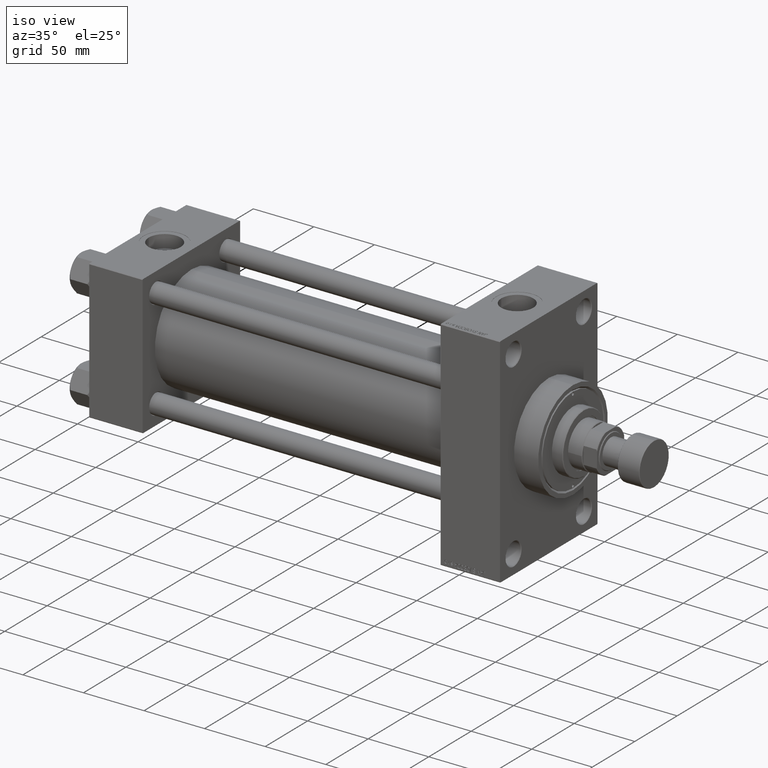
[diagram: clean part render]
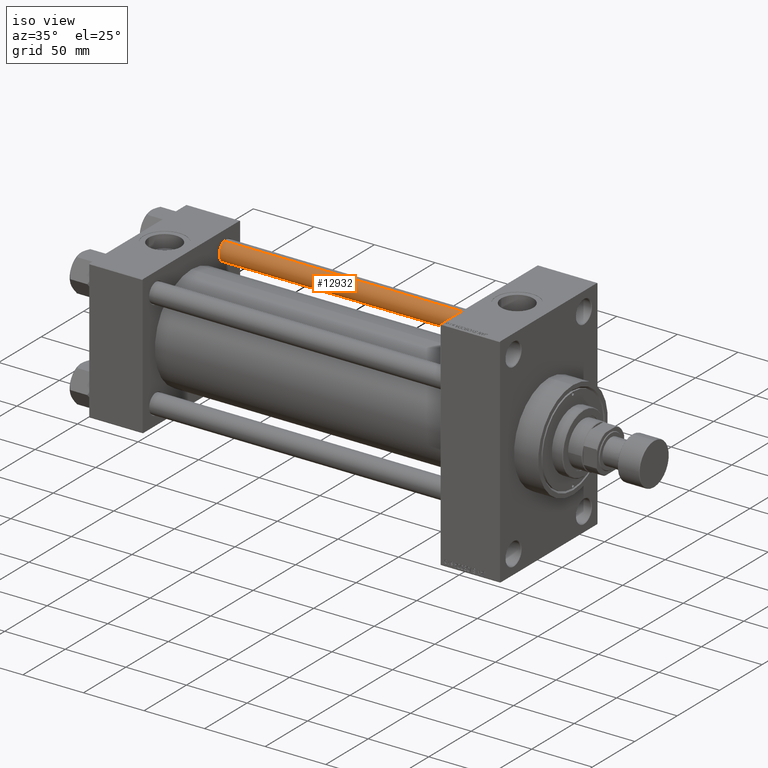
[diagram: same view with one face highlighted and labeled with its STEP entity id]
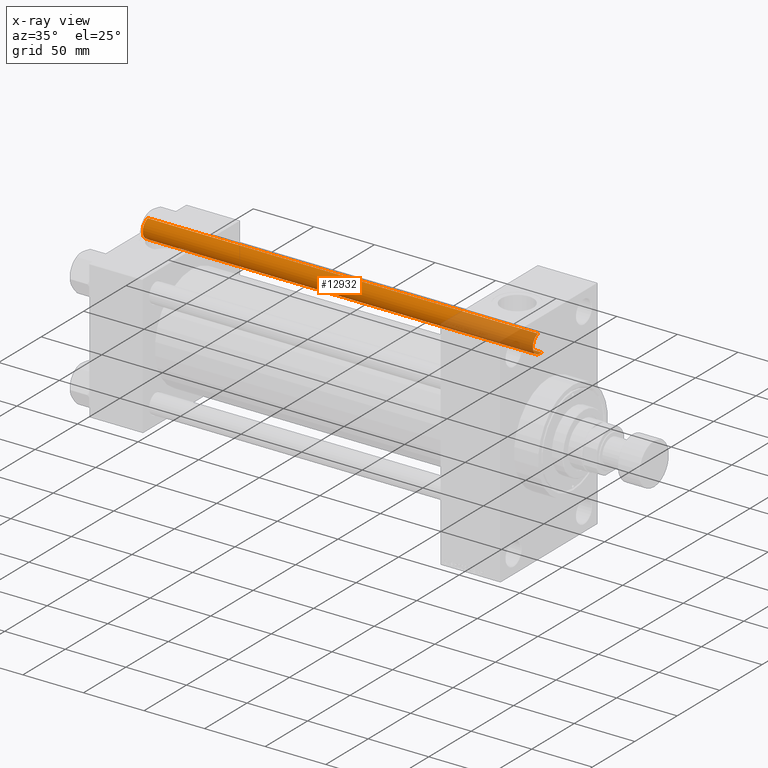
[diagram: x-ray of the same camera — body ghosted, the highlighted face saturated]
A machine part, iso view. The second image highlights one B-rep face of the part: STEP entity #12932.
The next image is the same camera in x-ray: the body ghosted, the highlighted face saturated — about 22% of this face is hidden behind the body in this view.
In plain terms, the highlighted cylindrical surface (edge-blend (fillet) strip) has radius 8 mm, axis along (-1, -0, 0).
Its self-contained STEP definition (entity closure, byte-faithful):
#425 = CARTESIAN_POINT ( 'NONE',  ( -8.000000000000000000, 0.000000000000000000, 0.5000000000000004441 ) ) ;
#885 = VECTOR ( 'NONE', #33279, 1000.000000000000000 ) ;
#1073 = DIRECTION ( 'NONE',  ( -0.000000000000000000, -0.000000000000000000, -1.000000000000000000 ) ) ;
#2963 = AXIS2_PLACEMENT_3D ( 'NONE', #6952, #37239, #33077 ) ;
#4298 = CIRCLE ( 'NONE', #39369, 8.000000000000000000 ) ;
#6952 = CARTESIAN_POINT ( 'NONE',  ( 0.000000000000000000, 0.000000000000000000, 323.0000000000000000 ) ) ;
#7405 = CARTESIAN_POINT ( 'NONE',  ( 8.000000000000000000, 9.797174393178825657E-16, 322.5000000000000000 ) ) ;
#7619 = LINE ( 'NONE', #40868, #885 ) ;
#10348 = VERTEX_POINT ( 'NONE', #44113 ) ;
#10883 = CARTESIAN_POINT ( 'NONE',  ( 0.000000000000000000, 0.000000000000000000, 322.5000000000000000 ) ) ;
#11004 = VERTEX_POINT ( 'NONE', #425 ) ;
#12932 = ADVANCED_FACE ( 'NONE', ( #22583 ), #26252, .T. ) ;
#13988 = DIRECTION ( 'NONE',  ( 1.000000000000000000, 0.000000000000000000, 0.000000000000000000 ) ) ;
#14140 = ORIENTED_EDGE ( 'NONE', *, *, #19546, .F. ) ;
#17595 = ORIENTED_EDGE ( 'NONE', *, *, #47198, .T. ) ;
#17904 = CARTESIAN_POINT ( 'NONE',  ( 8.000000000000000000, 9.797174393178825657E-16, 0.5000000000000004441 ) ) ;
#17972 = VECTOR ( 'NONE', #1073, 1000.000000000000000 ) ;
#19546 = EDGE_CURVE ( 'NONE', #31560, #47213, #7619, .T. ) ;
#20264 = EDGE_CURVE ( 'NONE', #10348, #11004, #27461, .T. ) ;
#21314 = DIRECTION ( 'NONE',  ( -0.000000000000000000, -0.000000000000000000, 1.000000000000000000 ) ) ;
#22583 = FACE_OUTER_BOUND ( 'NONE', #44017, .T. ) ;
#24196 = AXIS2_PLACEMENT_3D ( 'NONE', #39402, #21314, #13988 ) ;
#26252 = CYLINDRICAL_SURFACE ( 'NONE', #2963, 8.000000000000000000 ) ;
#27461 = LINE ( 'NONE', #38932, #17972 ) ;
#30239 = EDGE_CURVE ( 'NONE', #31560, #10348, #4298, .T. ) ;
#31560 = VERTEX_POINT ( 'NONE', #7405 ) ;
#32622 = DIRECTION ( 'NONE',  ( 0.000000000000000000, 0.000000000000000000, -1.000000000000000000 ) ) ;
#33077 = DIRECTION ( 'NONE',  ( -1.000000000000000000, 0.000000000000000000, 0.000000000000000000 ) ) ;
#33279 = DIRECTION ( 'NONE',  ( -0.000000000000000000, -0.000000000000000000, -1.000000000000000000 ) ) ;
#33567 = CIRCLE ( 'NONE', #24196, 8.000000000000000000 ) ;
#37239 = DIRECTION ( 'NONE',  ( -0.000000000000000000, -0.000000000000000000, -1.000000000000000000 ) ) ;
#38932 = CARTESIAN_POINT ( 'NONE',  ( -8.000000000000000000, 0.000000000000000000, 323.0000000000000000 ) ) ;
#39369 = AXIS2_PLACEMENT_3D ( 'NONE', #10883, #32622, #40205 ) ;
#39402 = CARTESIAN_POINT ( 'NONE',  ( 0.000000000000000000, 0.000000000000000000, 0.5000000000000004441 ) ) ;
#40205 = DIRECTION ( 'NONE',  ( 1.000000000000000000, 0.000000000000000000, 0.000000000000000000 ) ) ;
#40868 = CARTESIAN_POINT ( 'NONE',  ( 8.000000000000000000, 9.797174393178825657E-16, 323.0000000000000000 ) ) ;
#41539 = ORIENTED_EDGE ( 'NONE', *, *, #20264, .T. ) ;
#42285 = ORIENTED_EDGE ( 'NONE', *, *, #30239, .T. ) ;
#44017 = EDGE_LOOP ( 'NONE', ( #14140, #42285, #41539, #17595 ) ) ;
#44113 = CARTESIAN_POINT ( 'NONE',  ( -8.000000000000000000, 0.000000000000000000, 322.5000000000000000 ) ) ;
#47198 = EDGE_CURVE ( 'NONE', #11004, #47213, #33567, .T. ) ;
#47213 = VERTEX_POINT ( 'NONE', #17904 ) ;